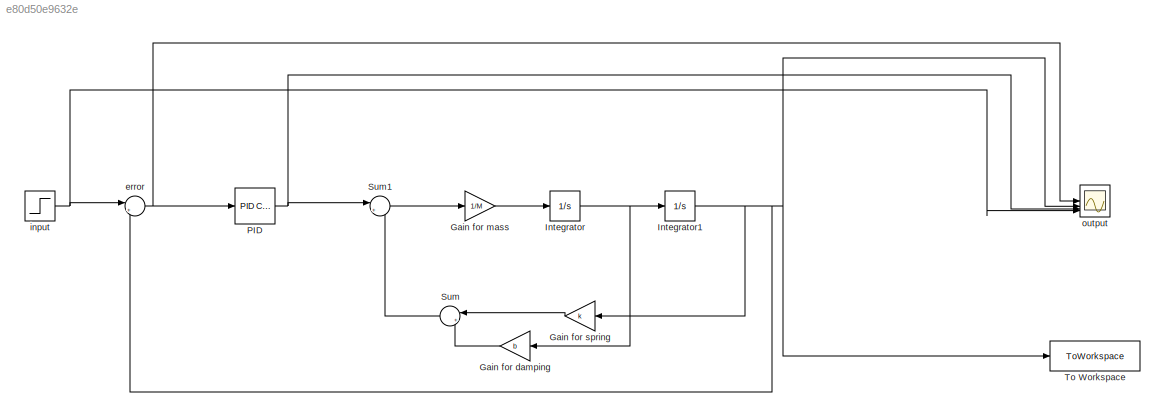
MODEL slx_e80d50e9632e
KIND model
CONFIG AbsTol = auto
CONFIG EnableMultiTasking = off
CONFIG FixedStep = auto
CONFIG MaxStep = auto
CONFIG MinStep = auto
CONFIG RelTol = 1e-3
CONFIG SampleTimeConstraint = Unconstrained
CONFIG SolverName = VariableStepAuto
CONFIG StartTime = 0.0
CONFIG StopTime = 10.0
BLOCK [Gain] Gain for damping
  Gain = b
  NameLocation = top
BLOCK [Gain] Gain for mass
  Gain = 1/M
BLOCK [Gain] Gain for spring
  Gain = k
  NameLocation = top
BLOCK [Integrator] Integrator
BLOCK [Integrator] Integrator1
BLOCK [Reference] PID  REF=slpidlib/PID Controller
  LibrarySourceBlock = simulink/Continuous/PID Controller
  SourceBlock = slpidlib/PID Controller
  SourceType = PID 1dof
BLOCK [Sum] Sum
  Inputs = |++
  NameLocation = top
BLOCK [Sum] Sum1
  Inputs = |+-
BLOCK [ToWorkspace] To Workspace
  FixptAsFi = on
  MaxDataPoints = inf
  SampleTime = -1
  SaveFormat = Timeseries
  VariableName = y
BLOCK [Sum] error
  Inputs = |+-
BLOCK [Step] input
  SampleTime = 0
  VectorParams1D = off
BLOCK [Scope] output
  Floating = off
  NumInputPorts = 4
  ScopeSpecificationString = Simulink.scopes.TimeScopeBlockCfg('CurrentConfiguration', extmgr.ConfigurationSet(extmgr.Configuration('Core','General UI',true),extmgr.Configuration('Core','Source UI',true),extmgr.Configuration('Sources','WiredSimulink',true),extmgr.Configuration('Visuals','Time Domain',true,'SerializedDisplays',{struct('MinYLimReal','-10.00000','MaxYLimReal','10.00000','YLabelReal','','MinYLimMag','0.00000','Ma...<+3618ch>
LINE Gain for damping:1 -> Sum:2
LINE Gain for mass:1 -> Integrator:1
LINE Gain for spring:1 -> Sum:1
NET Integrator1:1 -> Gain for spring:1, To Workspace:1, error:2, output:2
NET Integrator:1 -> Gain for damping:1, Integrator1:1
NET PID:1 -> Sum1:1, output:3
LINE Sum1:1 -> Gain for mass:1
LINE Sum:1 -> Sum1:2
NET error:1 -> PID:1, output:1
NET input:1 -> error:1, output:4
note: NET lines group one-source signal fan-out (src -> all destinations, sorted); 1:1 wires keep LINE
